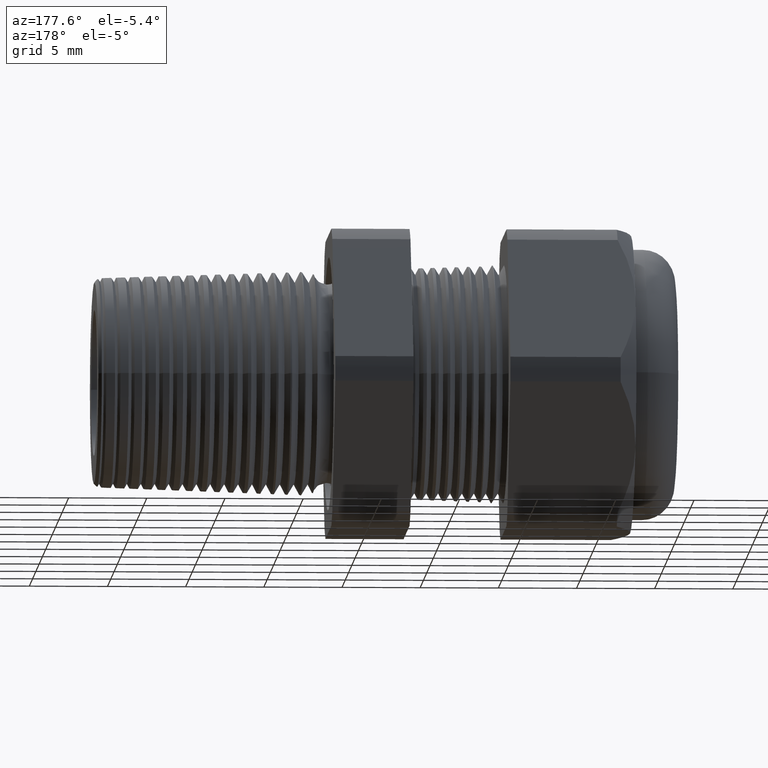
[diagram: clean part render]
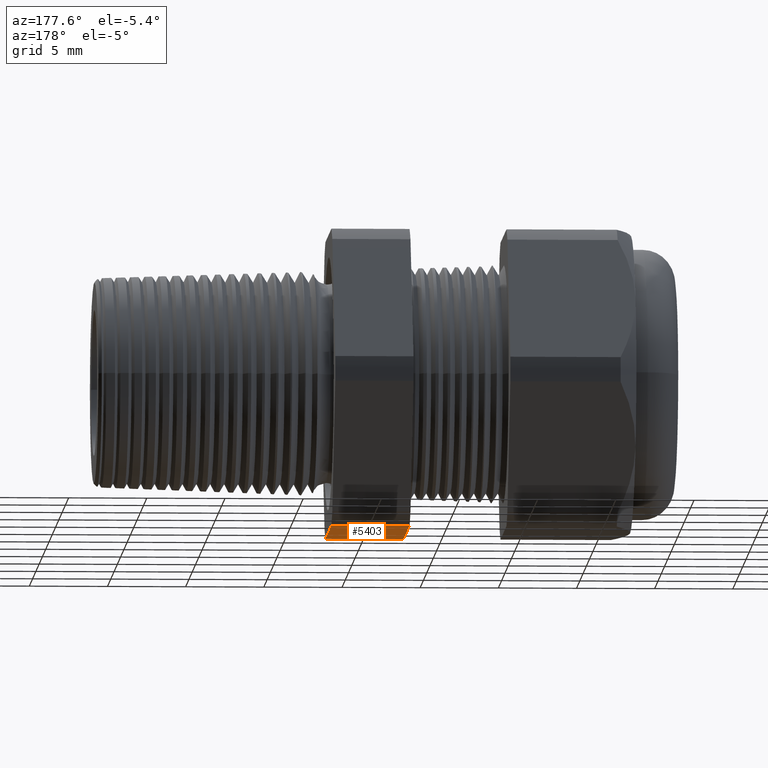
[diagram: same view with one face highlighted and labeled with its STEP entity id]
A machine part, auxiliary view. The second image highlights one B-rep face of the part: STEP entity #5403.
In plain terms, the highlighted planar face has unit normal (0, 0, -1).
Its self-contained STEP definition (entity closure, byte-faithful):
#207 = VERTEX_POINT ( 'NONE', #2180 ) ;
#209 = VERTEX_POINT ( 'NONE', #2178 ) ;
#211 = EDGE_CURVE ( 'NONE', #207, #209, #2177, .T. ) ;
#276 = VERTEX_POINT ( 'NONE', #2265 ) ;
#300 = VERTEX_POINT ( 'NONE', #2293 ) ;
#302 = EDGE_CURVE ( 'NONE', #276, #300, #2345, .T. ) ;
#2174 = DIRECTION ( 'NONE',  ( -3.234525066229925200E-018, -1.000000000000000000, 0.0000000000000000000 ) ) ;
#2175 = VECTOR ( 'NONE', #2174, 39.37007874015748100 ) ;
#2176 = CARTESIAN_POINT ( 'NONE',  ( -0.5068503937007873300, 0.7500000000000002200, -0.3750000000000001100 ) ) ;
#2177 = LINE ( 'NONE', #2176, #2175 ) ;
#2178 = CARTESIAN_POINT ( 'NONE',  ( -0.5068503937007874400, -0.1806628420566883900, -0.3750000000000001100 ) ) ;
#2180 = CARTESIAN_POINT ( 'NONE',  ( -0.5068503937007874400, 0.1806628420566884800, -0.3750000000000001100 ) ) ;
#2265 = CARTESIAN_POINT ( 'NONE',  ( -0.3100000000000000000, -0.1806628420566883900, -0.3750000000000001100 ) ) ;
#2293 = CARTESIAN_POINT ( 'NONE',  ( -0.3100000000000000000, 0.1806628420566884800, -0.3750000000000001100 ) ) ;
#2342 = DIRECTION ( 'NONE',  ( 3.234525066229925200E-018, 1.000000000000000000, 0.0000000000000000000 ) ) ;
#2343 = VECTOR ( 'NONE', #2342, 39.37007874015748100 ) ;
#2344 = CARTESIAN_POINT ( 'NONE',  ( -0.3100000000000000000, 0.7500000000000002200, -0.3750000000000001100 ) ) ;
#2345 = LINE ( 'NONE', #2344, #2343 ) ;
#5101 = EDGE_CURVE ( 'NONE', #300, #207, #5176, .T. ) ;
#5171 = DIRECTION ( 'NONE',  ( -1.000000000000000000, -0.0000000000000000000, -0.0000000000000000000 ) ) ;
#5172 = VECTOR ( 'NONE', #5171, 39.37007874015748100 ) ;
#5173 = CARTESIAN_POINT ( 'NONE',  ( 0.2800000000000001400, 0.1806628420566884800, -0.3750000000000001100 ) ) ;
#5176 = LINE ( 'NONE', #5173, #5172 ) ;
#5220 = DIRECTION ( 'NONE',  ( -1.000000000000000000, -0.0000000000000000000, -0.0000000000000000000 ) ) ;
#5221 = VECTOR ( 'NONE', #5220, 39.37007874015748100 ) ;
#5222 = CARTESIAN_POINT ( 'NONE',  ( 0.2800000000000001400, -0.1806628420566883900, -0.3750000000000001100 ) ) ;
#5223 = DIRECTION ( 'NONE',  ( -1.000000000000000000, 0.0000000000000000000, -0.0000000000000000000 ) ) ;
#5224 = DIRECTION ( 'NONE',  ( 0.0000000000000000000, 0.0000000000000000000, -1.000000000000000000 ) ) ;
#5225 = ORIENTED_EDGE ( 'NONE', *, *, #5101, .F. ) ;
#5226 = CARTESIAN_POINT ( 'NONE',  ( 0.2800000000000001400, 0.1806628420566883900, -0.3750000000000001100 ) ) ;
#5227 = AXIS2_PLACEMENT_3D ( 'NONE', #5226, #5224, #5223 ) ;
#5228 = PLANE ( 'NONE',  #5227 ) ;
#5230 = LINE ( 'NONE', #5222, #5221 ) ;
#5231 = FACE_OUTER_BOUND ( 'NONE', #5400, .T. ) ;
#5278 = ORIENTED_EDGE ( 'NONE', *, *, #211, .F. ) ;
#5399 = ORIENTED_EDGE ( 'NONE', *, *, #5404, .T. ) ;
#5400 = EDGE_LOOP ( 'NONE', ( #5399, #5278, #5225, #5421 ) ) ;
#5403 = ADVANCED_FACE ( 'NONE', ( #5231 ), #5228, .T. ) ;
#5404 = EDGE_CURVE ( 'NONE', #276, #209, #5230, .T. ) ;
#5421 = ORIENTED_EDGE ( 'NONE', *, *, #302, .F. ) ;